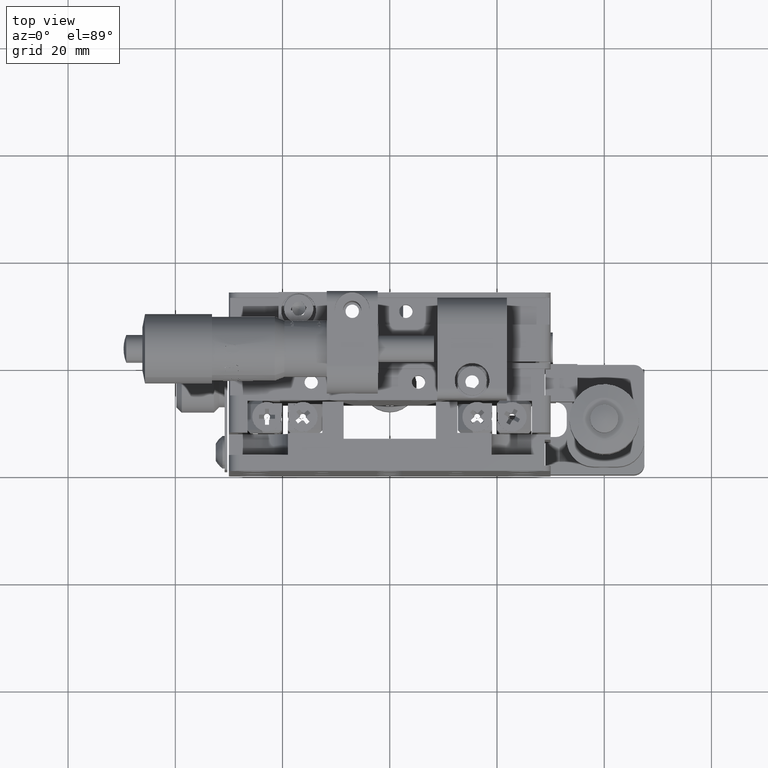
[diagram: clean part render]
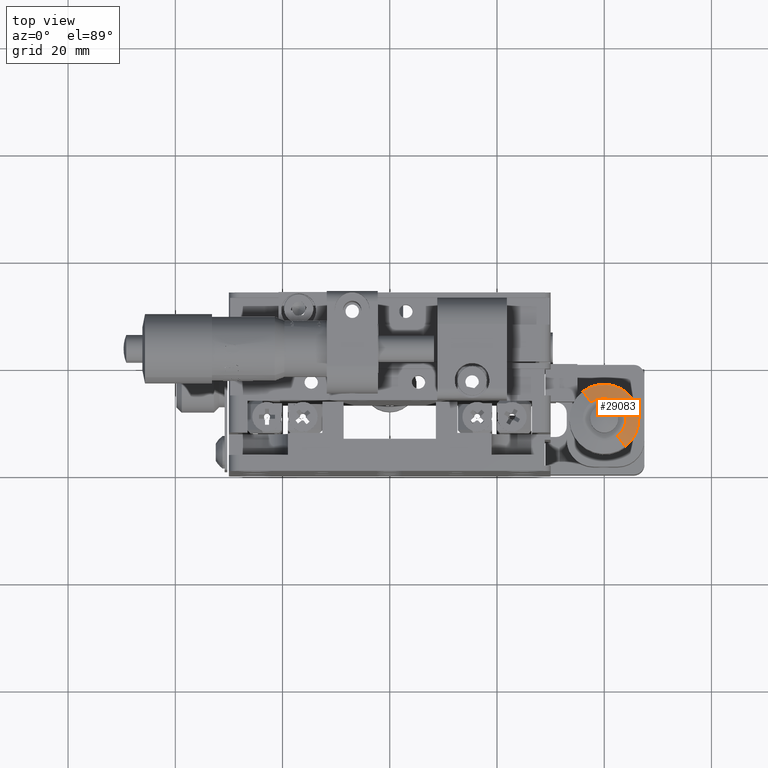
[diagram: same view with one face highlighted and labeled with its STEP entity id]
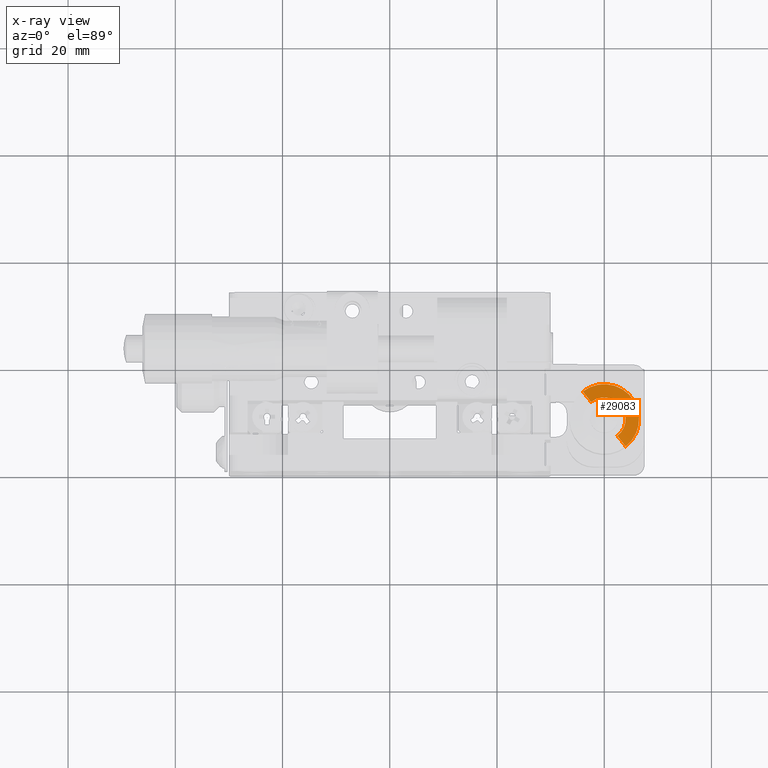
[diagram: x-ray of the same camera — body ghosted, the highlighted face saturated]
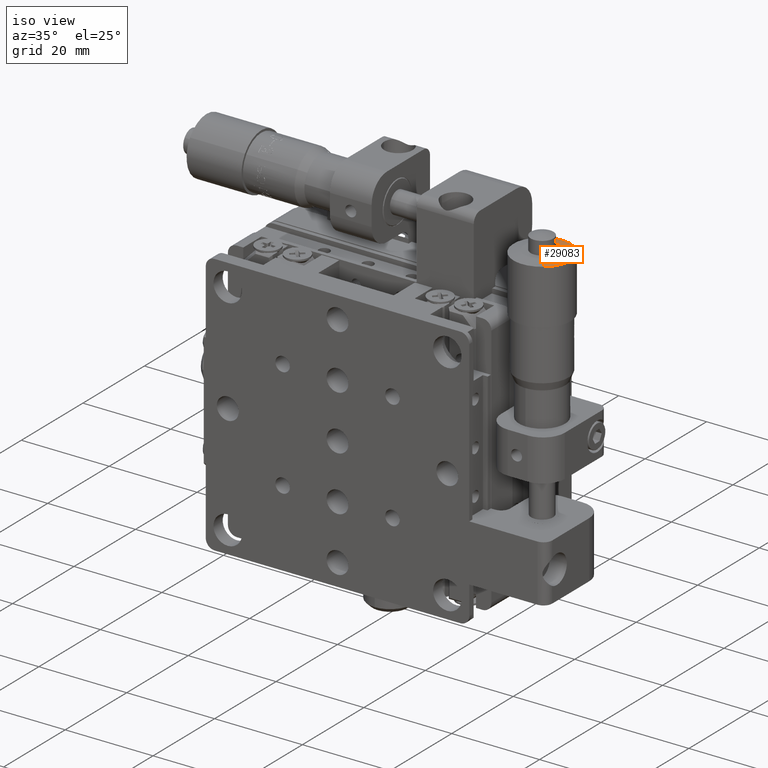
[diagram: same view with one face highlighted and labeled with its STEP entity id]
A machine part, top view. The second image highlights one B-rep face of the part: STEP entity #29083.
The next image is the same camera in x-ray: the body ghosted, the highlighted face saturated — about 0% of this face is hidden behind the body in this view.
A second angle (iso view) of the same face is appended — the face is thin or edge-on in the first view.
In plain terms, the highlighted conical surface has half-angle 78.69 deg.
Its self-contained STEP definition (entity closure, byte-faithful):
#1882 = AXIS2_PLACEMENT_3D ( 'NONE', #23821, #62958, #29439 ) ;
#7199 = ORIENTED_EDGE ( 'NONE', *, *, #68062, .F. ) ;
#8080 = AXIS2_PLACEMENT_3D ( 'NONE', #44932, #28297, #56405 ) ;
#10143 = CONICAL_SURFACE ( 'NONE', #8080, 4.000000000000010700, 1.373400766945015700 ) ;
#14482 = LINE ( 'NONE', #40168, #29349 ) ;
#18905 = AXIS2_PLACEMENT_3D ( 'NONE', #55830, #22353, #61492 ) ;
#22353 = DIRECTION ( 'NONE',  ( -1.985969020082118900E-018, 9.582087370709749100E-017, 1.000000000000000000 ) ) ;
#22779 = EDGE_CURVE ( 'NONE', #69858, #42224, #63449, .T. ) ;
#22947 = VERTEX_POINT ( 'NONE', #47250 ) ;
#23821 = CARTESIAN_POINT ( 'NONE',  ( 40.00000000000005000, 9.399999999999970200, 46.50000000000001400 ) ) ;
#24497 = EDGE_LOOP ( 'NONE', ( #71265, #29008, #72114, #7199 ) ) ;
#25923 = CARTESIAN_POINT ( 'NONE',  ( 43.99569273052539800, 4.273164757550000900, 46.00000000000001400 ) ) ;
#25993 = CARTESIAN_POINT ( 'NONE',  ( 42.45888783416949500, 6.245024466184604600, 46.50000000000001400 ) ) ;
#28297 = DIRECTION ( 'NONE',  ( 1.985969020082118900E-018, -9.582087370709749100E-017, -1.000000000000000000 ) ) ;
#29008 = ORIENTED_EDGE ( 'NONE', *, *, #62285, .T. ) ;
#29083 = ADVANCED_FACE ( 'NONE', ( #60015 ), #10143, .T. ) ;
#29349 = VECTOR ( 'NONE', #39930, 1000.000000000000000 ) ;
#29439 = DIRECTION ( 'NONE',  ( 0.6147219585423605600, -0.7887438834538398300, 0.0000000000000000000 ) ) ;
#36414 = VECTOR ( 'NONE', #64606, 1000.000000000000100 ) ;
#38155 = LINE ( 'NONE', #58965, #36414 ) ;
#38888 = VERTEX_POINT ( 'NONE', #25993 ) ;
#39930 = DIRECTION ( 'NONE',  ( 0.6027844734695138000, -0.7734270101842465300, -0.1961161351381836600 ) ) ;
#40168 = CARTESIAN_POINT ( 'NONE',  ( 42.45888783416949500, 6.245024466184603700, 46.50000000000001400 ) ) ;
#42224 = VERTEX_POINT ( 'NONE', #58718 ) ;
#44932 = CARTESIAN_POINT ( 'NONE',  ( 40.00000000000005000, 9.399999999999970200, 46.50000000000001400 ) ) ;
#47250 = CARTESIAN_POINT ( 'NONE',  ( 37.54111216583059700, 12.55497553381534100, 46.50000000000001400 ) ) ;
#52845 = EDGE_CURVE ( 'NONE', #38888, #22947, #56393, .T. ) ;
#55830 = CARTESIAN_POINT ( 'NONE',  ( 40.00000000000005000, 9.399999999999970200, 46.00000000000001400 ) ) ;
#56393 = CIRCLE ( 'NONE', #1882, 4.000000000000010700 ) ;
#56405 = DIRECTION ( 'NONE',  ( -0.6147219585423605600, 0.7887438834538398300, 0.0000000000000000000 ) ) ;
#58718 = CARTESIAN_POINT ( 'NONE',  ( 36.00430726947469400, 14.52683524244994500, 46.00000000000001400 ) ) ;
#58965 = CARTESIAN_POINT ( 'NONE',  ( 37.54111216583059700, 12.55497553381533900, 46.50000000000001400 ) ) ;
#60015 = FACE_OUTER_BOUND ( 'NONE', #24497, .T. ) ;
#61492 = DIRECTION ( 'NONE',  ( 0.6147219585423602300, -0.7887438834538399400, 0.0000000000000000000 ) ) ;
#62285 = EDGE_CURVE ( 'NONE', #38888, #69858, #14482, .T. ) ;
#62958 = DIRECTION ( 'NONE',  ( -1.985969020082118900E-018, 9.582087370709749100E-017, 1.000000000000000000 ) ) ;
#63449 = CIRCLE ( 'NONE', #18905, 6.500000000000014200 ) ;
#64606 = DIRECTION ( 'NONE',  ( -0.6027844734695136900, 0.7734270101842466400, -0.1961161351381838200 ) ) ;
#68062 = EDGE_CURVE ( 'NONE', #22947, #42224, #38155, .T. ) ;
#69858 = VERTEX_POINT ( 'NONE', #25923 ) ;
#71265 = ORIENTED_EDGE ( 'NONE', *, *, #52845, .F. ) ;
#72114 = ORIENTED_EDGE ( 'NONE', *, *, #22779, .T. ) ;